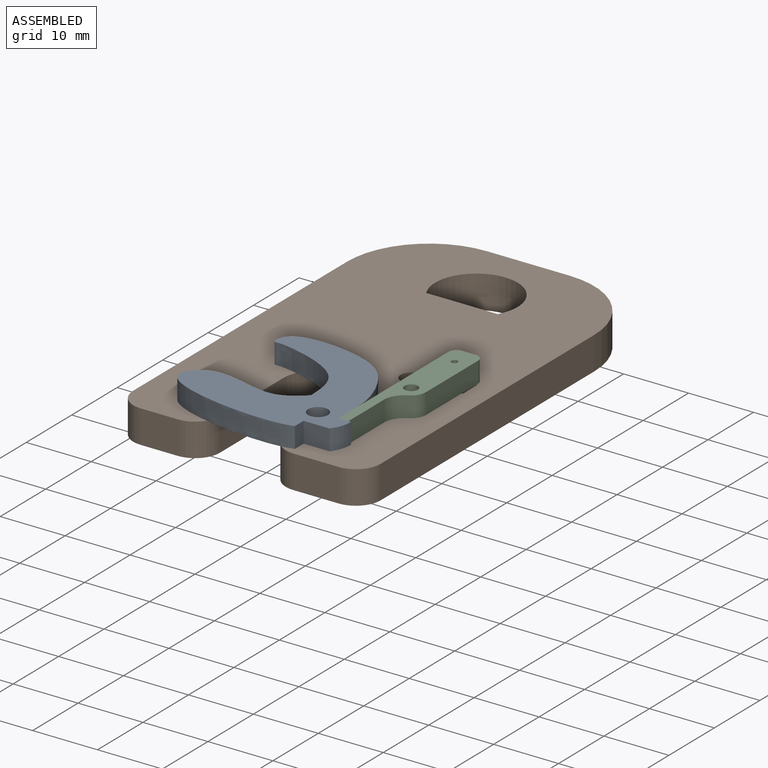
[diagram: assembled view]
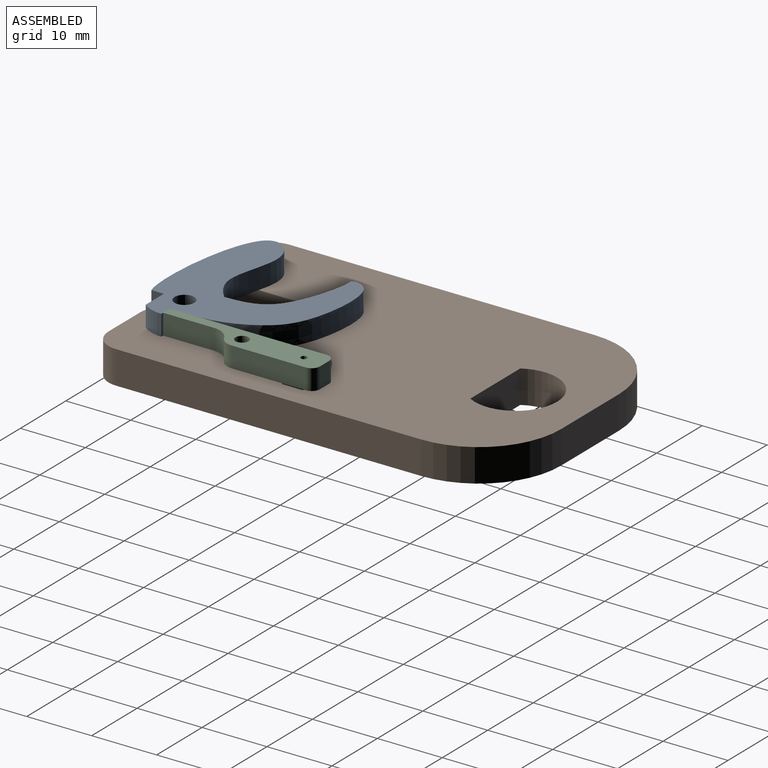
[diagram: assembled view, second angle]
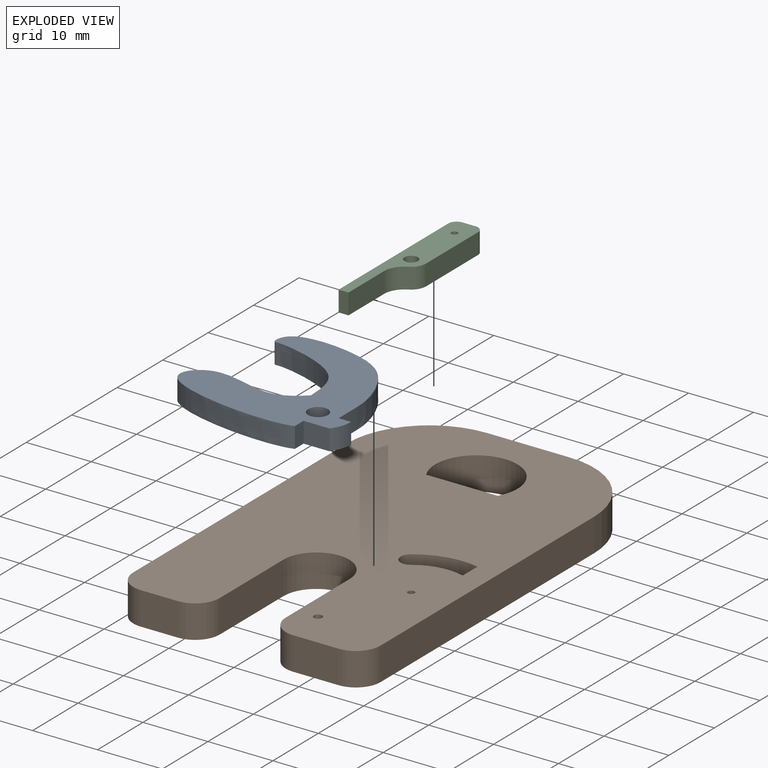
[diagram: exploded view]
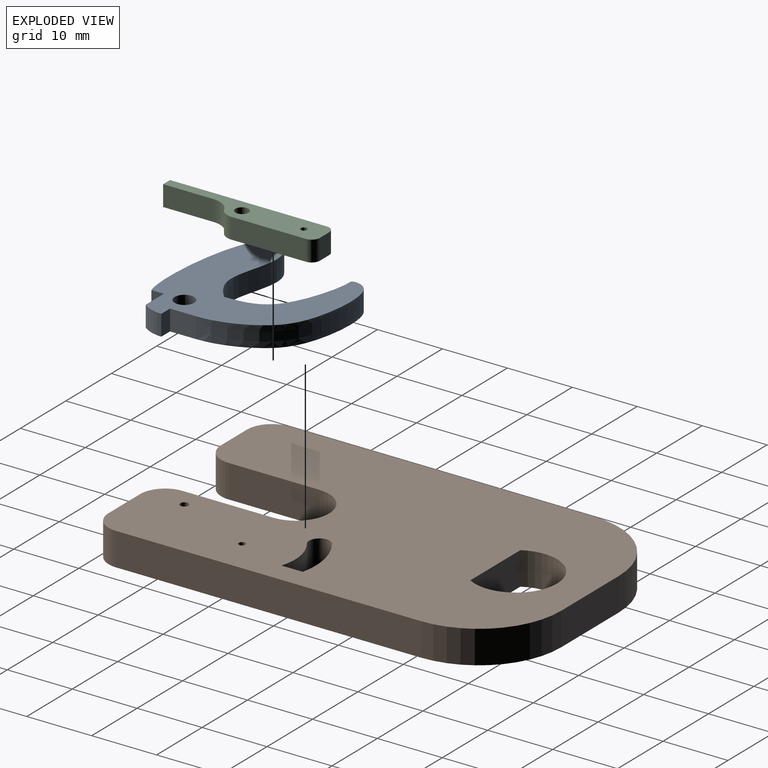
[diagram: exploded view, second angle]
ASSEMBLY  parts=3 mates=2
PART A: 10 faces, bbox 24.4x27x3.2 mm
  f0: plane 3.99x3.18mm, normal (0,1,0), area 12.7mm2, adj f1,f7,f8,f9
  f1: extruded ~19.86x13.9mm, area 154.3mm2, adj f0,f2,f8,f9
  f2: extruded ~20.86x9.22mm, area 134.1mm2, adj f1,f3,f8,f9
  f3: plane 3.18x1.92mm, normal (0,1,0), area 6.1mm2, adj f2,f4,f8,f9
  f4: plane 3.99x3.18mm, normal (1,0,0), area 12.7mm2, adj f3,f5,f8,f9
  f5: cylinder r=5.1mm len=3.18mm, axis (0,0,-1), area 10.9mm2, adj f4,f7,f8,f9
  f6: cylinder r=1.52mm len=3.18mm, axis (0,0,-1), area 30.4mm2, adj f8,f9
  f7: plane 3.18x1.92mm, normal (-1,0,0), area 6.1mm2, adj f0,f5,f8,f9
  f8: plane 27.02x24.43mm, normal (0,0,1), area 288.5mm2, adj f0,f1,f2,f3,f4,f5,f6,f7
  f9: plane 27.02x24.43mm, normal (0,0,-1), area 288.5mm2, adj f0,f1,f2,f3,f4,f5,f6,f7
PART B: 24 faces, bbox 38.1x63.5x5.1 mm
  f0: plane 63.5x38.1mm, normal (0,0,-1), area 1981.6mm2, adj f2,f3,f4,f5,f6,f7,f8,f9
  f1: plane 63.5x38.1mm, normal (0,0,1), area 1981.6mm2, adj f2,f3,f4,f5,f6,f7,f8,f9
  f2: cylinder r=5.08mm len=10.16mm, axis (0,0,1), area 81.1mm2, adj f0,f1,f3,f18
  f3: plane 13.97x5.08mm, normal (-1,0,0), area 71mm2, adj f0,f1,f2,f4
  f4: cylinder r=3.81mm len=5.08mm, axis (0,0,1), area 30.4mm2, adj f0,f1,f3,f5
  f5: plane 6.99x5.08mm, normal (0,-1,0), area 35.5mm2, adj f0,f1,f4,f6
  f6: cylinder r=3.81mm len=5.08mm, axis (0,0,1), area 30.4mm2, adj f0,f1,f5,f7
  f7: plane 46.99x5.08mm, normal (1,0,0), area 238.7mm2, adj f0,f1,f6,f8
  f8: cylinder r=12.7mm len=12.7mm, axis (0,0,1), area 101.3mm2, adj f0,f1,f7,f9
  f9: plane 12.7x5.08mm, normal (0,1,0), area 64.5mm2, adj f0,f1,f8,f10
  f10: cylinder r=12.7mm len=12.7mm, axis (0,0,1), area 101.3mm2, adj f0,f1,f9,f11
  f11: plane 46.99x5.08mm, normal (-1,0,0), area 238.7mm2, adj f0,f1,f10,f12
  f12: cylinder r=3.81mm len=5.08mm, axis (0,0,1), area 30.4mm2, adj f0,f1,f11,f13
  f13: plane 5.72x5.08mm, normal (0,-1,0), area 29mm2, adj f0,f1,f12,f14
  f14: cylinder r=3.81mm len=5.08mm, axis (0,0,1), area 30.4mm2, adj f0,f1,f13,f18
  f15: plane 11x5.08mm, normal (0,1,0), area 55.9mm2, adj f0,f1,f16
  f16: cylinder r=6.35mm len=12.7mm, axis (0,0,1), area 135.1mm2, adj f0,f1,f15
  f17: cylinder r=0.64mm len=5.08mm, axis (0,0,1), area 20.3mm2, adj f0,f1
  f18: plane 13.97x5.08mm, normal (1,0,0), area 71mm2, adj f0,f1,f2,f14
  f19: cylinder r=0.51mm len=5.08mm, axis (0,0,1), area 16.2mm2, adj f0,f1
  f20: cylinder r=8.18mm len=7.17mm, axis (0,0,1), area 38.2mm2, adj f0,f1,f21,f23
  f21: plane 5.08x3.28mm, normal (-1,0,0), area 16.7mm2, adj f0,f1,f20,f22
  f22: cylinder r=11.35mm len=9mm, axis (0,0,1), area 48mm2, adj f0,f1,f21,f23
  f23: cylinder r=1.59mm len=5.08mm, axis (0,0,1), area 25.3mm2, adj f0,f1,f20,f22
PART C: 13 faces, bbox 4.6x25.4x3.2 mm
  f0: cylinder r=2.29mm len=3.18mm, axis (0,0,-1), area 8.1mm2, adj f1,f10,f11,f12
  f1: plane 11.43x3.18mm, normal (1,0,0), area 36.3mm2, adj f0,f2,f11,f12
  f2: cylinder r=1.27mm len=3.18mm, axis (0,0,-1), area 6.3mm2, adj f1,f3,f11,f12
  f3: plane 3.18x2.03mm, normal (0,1,0), area 6.5mm2, adj f2,f4,f11,f12
  f4: cylinder r=1.27mm len=3.18mm, axis (0,0,-1), area 6.3mm2, adj f3,f5,f11,f12
  f5: plane 24.13x3.18mm, normal (-1,0,0), area 76.6mm2, adj f4,f6,f11,f12
  f6: plane 3.18x1.52mm, normal (0,-1,0), area 4.8mm2, adj f5,f7,f11,f12
  f7: plane 7.8x3.18mm, normal (1,0,0), area 24.8mm2, adj f6,f10,f11,f12
  f8: cylinder r=1.02mm len=3.18mm, axis (0,0,-1), area 20.3mm2, adj f11,f12
  f9: cylinder r=0.48mm len=3.18mm, axis (0,0,-1), area 9.5mm2, adj f11,f12
  f10: cylinder r=3.17mm len=3.18mm, axis (0,0,-1), area 11.2mm2, adj f0,f7,f11,f12
  f11: plane 25.4x4.57mm, normal (0,0,1), area 79.7mm2, adj f0,f1,f2,f3,f4,f5,f6,f7
  f12: plane 25.4x4.57mm, normal (0,0,-1), area 79.7mm2, adj f0,f1,f2,f3,f4,f5,f6,f7
PLACE A rot(axis=(0,0,-1),90deg) t=(0,15.24,0)mm
PLACE B at identity fixed
PLACE C at identity
MATE revolute B.f19 <-> C.f0  axis (0,0,1) through (13.08,20.32,0)mm
MATE revolute A.f5 <-> B.f17  axis (0,0,-1) through (7.62,7.62,0)mm
